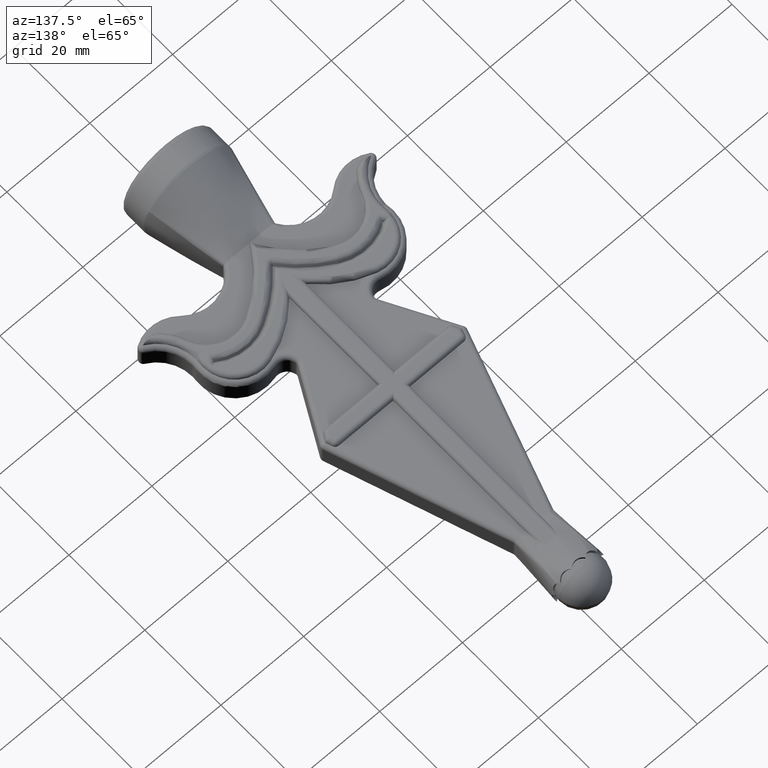
[diagram: clean part render]
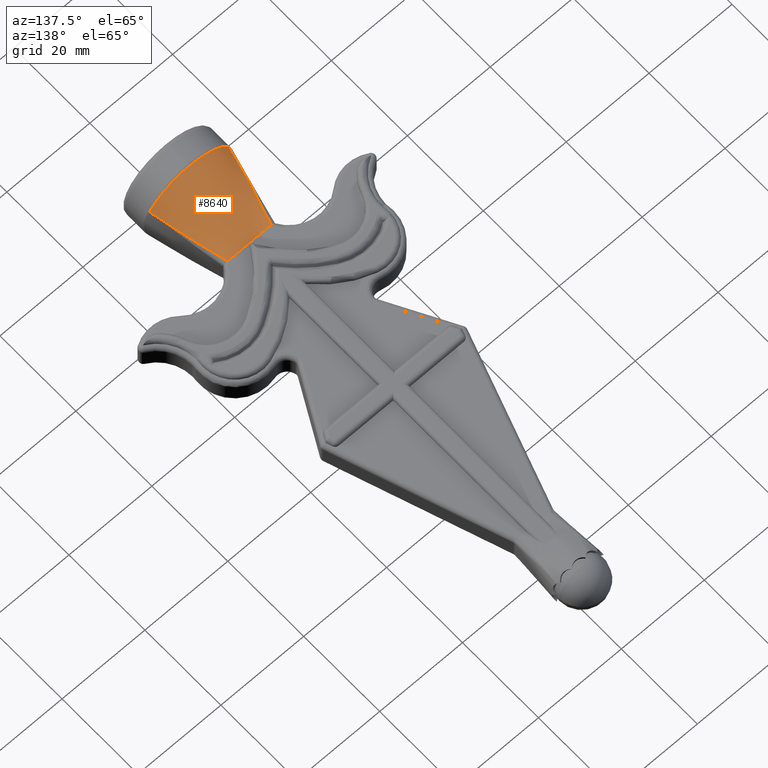
[diagram: same view with one face highlighted and labeled with its STEP entity id]
A machine part, auxiliary view. The second image highlights one B-rep face of the part: STEP entity #8640.
In plain terms, the highlighted face is a freeform B-spline surface patch.
Its self-contained STEP definition (entity closure, byte-faithful):
#73 = CARTESIAN_POINT ( 'NONE',  ( -5.266243742294511400, 22.00005610809793000, 3.249989336527393700 ) ) ;
#148 = CARTESIAN_POINT ( 'NONE',  ( 7.248639475262983500, 15.46262379196454400, 4.170989094167075500 ) ) ;
#187 = B_SPLINE_CURVE_WITH_KNOTS ( 'NONE', 3,
 ( #19378, #13108, #3645, #8485, #14683, #3577, #11507, #3868, #9909, #8415 ),
 .UNSPECIFIED., .F., .F.,
 ( 4, 2, 2, 2, 4 ),
 ( -6.000000000186783500E-008, 0.004136439241572319000, 0.008272938483144641100, 0.01240943772471696200, 0.01654593696628928500 ),
 .UNSPECIFIED. ) ;
#350 = CARTESIAN_POINT ( 'NONE',  ( 9.513144389087496900, 6.111428047479151400, 4.950568759943375400 ) ) ;
#603 = VERTEX_POINT ( 'NONE', #3733 ) ;
#1043 = CARTESIAN_POINT ( 'NONE',  ( -6.250000000000021300, 22.00000000000000000, 3.250000000000000000 ) ) ;
#1140 = EDGE_CURVE ( 'NONE', #16095, #10385, #14134, .T. ) ;
#1171 = CARTESIAN_POINT ( 'NONE',  ( 0.5208333333333339300, 21.99999999999999600, 3.249999999999999600 ) ) ;
#1305 = CARTESIAN_POINT ( 'NONE',  ( 9.537580613271902800, 6.000000000000000000, 4.959541918901377900 ) ) ;
#1525 = CARTESIAN_POINT ( 'NONE',  ( 5.165151513823994700, 21.99999999999998900, 3.250000000000004000 ) ) ;
#1809 = CARTESIAN_POINT ( 'NONE',  ( 0.9683731628859852900, 6.200012398156304400, 10.62309671897712500 ) ) ;
#1971 = VECTOR ( 'NONE', #14403, 1000.000000000000000 ) ;
#2006 = B_SPLINE_SURFACE_WITH_KNOTS ( 'NONE', 3, 1, ( 
 ( #10719, #1043, #13829 ),
 ( #11986, #15358, #16739 ),
 ( #20051, #4258, #12181 ),
 ( #15297, #9008, #15241 ),
 ( #5761, #8876, #4383 ),
 ( #7284, #12115, #5887 ),
 ( #2700, #16931, #16802 ),
 ( #5831, #15423, #16988 ),
 ( #8942, #7473, #7540 ),
 ( #12046, #1171, #19980 ),
 ( #2633, #13706, #9068 ),
 ( #2496, #16863, #13578 ),
 ( #4132, #10447, #18319 ),
 ( #2571, #18513, #20116 ),
 ( #10647, #7408, #19925 ),
 ( #18451, #13641, #18843 ),
 ( #4642, #20512, #18710 ),
 ( #1305, #18778, #4515 ) ),
 .UNSPECIFIED., .F., .F., .F.,
 ( 4, 2, 2, 2, 2, 2, 2, 2, 4 ),
 ( 2, 1, 2 ),
 ( 0.0000000000000000000, 0.1250000000000000300, 0.2500000000000000600, 0.3750000000000001100, 0.5000000000000001100, 0.6250000000000001100, 0.7500000000000002200, 0.8750000000000002200, 1.000000000000000000 ),
 ( 0.0000000000000000000, 1.000000000000000000, 1.010000000000000000 ),
 .UNSPECIFIED. ) ;
#2098 = CARTESIAN_POINT ( 'NONE',  ( 5.131154240925656800, 6.183385107899892900, 9.371855644858786900 ) ) ;
#2324 = DIRECTION ( 'NONE',  ( -1.000000000000000000, 0.0000000000000000000, 0.0000000000000000000 ) ) ;
#2362 = EDGE_CURVE ( 'NONE', #603, #5644, #19325, .T. ) ;
#2374 = CARTESIAN_POINT ( 'NONE',  ( -8.673617379884035500E-016, 22.00000000000000000, 3.250000000000000000 ) ) ;
#2496 = CARTESIAN_POINT ( 'NONE',  ( 4.205163981283923200, 6.000000000000000900, 9.950357934274812500 ) ) ;
#2571 = CARTESIAN_POINT ( 'NONE',  ( 6.803783035182218200, 6.000000000000002700, 8.382303401670061000 ) ) ;
#2633 = CARTESIAN_POINT ( 'NONE',  ( 2.174410978558045200, 6.000000000000001800, 10.58134982060416000 ) ) ;
#2700 = CARTESIAN_POINT ( 'NONE',  ( -4.205163981283924100, 6.000000000000001800, 9.950357934274814300 ) ) ;
#2868 = CARTESIAN_POINT ( 'NONE',  ( 5.116784102251076900, 22.00000000000000000, 3.250000000000000000 ) ) ;
#2939 = ORIENTED_EDGE ( 'NONE', *, *, #9196, .T. ) ;
#3134 = CARTESIAN_POINT ( 'NONE',  ( -7.481673178047332200, 6.157778641327777100, 7.658597178328012200 ) ) ;
#3205 = CARTESIAN_POINT ( 'NONE',  ( -6.361610438375008900, 6.172686067414304900, 8.597291167467121300 ) ) ;
#3226 = CARTESIAN_POINT ( 'NONE',  ( 5.266262131739829900, 22.00000000000000000, 3.250000000000000000 ) ) ;
#3577 = CARTESIAN_POINT ( 'NONE',  ( -7.951279007523856600, 12.80646236415938300, 4.415913353782698900 ) ) ;
#3634 = CARTESIAN_POINT ( 'NONE',  ( 6.382521586197591500, 6.174196974607332000, 8.622491702567524300 ) ) ;
#3645 = CARTESIAN_POINT ( 'NONE',  ( -6.096878405706267000, 19.40804206318112400, 3.695658979978787800 ) ) ;
#3733 = CARTESIAN_POINT ( 'NONE',  ( -5.255805630164780400, 22.03189181989564100, 3.243929333446773400 ) ) ;
#3825 = CARTESIAN_POINT ( 'NONE',  ( 5.259286017763429300, 22.02128082266397900, 3.245952343499007000 ) ) ;
#3868 = CARTESIAN_POINT ( 'NONE',  ( -8.915880124540283400, 8.796052428464866700, 4.737448862816463300 ) ) ;
#4132 = CARTESIAN_POINT ( 'NONE',  ( 5.147963392747053400, 6.000000000000000900, 9.489623112348505500 ) ) ;
#4258 = CARTESIAN_POINT ( 'NONE',  ( -5.208333333333351700, 22.00000000000000400, 3.250000000000000900 ) ) ;
#4383 = CARTESIAN_POINT ( 'NONE',  ( -3.614253836314857100, 22.16000000000000000, 3.198676965983299400 ) ) ;
#4515 = CARTESIAN_POINT ( 'NONE',  ( 6.217124193867301900, 22.16000000000000000, 3.232904580810986000 ) ) ;
#4642 = CARTESIAN_POINT ( 'NONE',  ( 9.170898203532186000, 5.999999999999998200, 5.664700399170058600 ) ) ;
#4674 = CARTESIAN_POINT ( 'NONE',  ( -9.283791435017770200, 6.119400560037843400, 5.382983090056068700 ) ) ;
#4857 = CARTESIAN_POINT ( 'NONE',  ( -5.165336576323706000, 22.00000000000000000, 3.250000000000000000 ) ) ;
#4934 = CARTESIAN_POINT ( 'NONE',  ( -4.702737057444714700, 6.186003479268984000, 9.590600137749072800 ) ) ;
#5005 = CARTESIAN_POINT ( 'NONE',  ( -5.266262131739647900, 22.00000000000000000, 3.250000000000000000 ) ) ;
#5094 = CARTESIAN_POINT ( 'NONE',  ( 8.282574215453468700, 11.47193090359445700, 4.524109014534240600 ) ) ;
#5215 = CARTESIAN_POINT ( 'NONE',  ( 8.458976083981527300, 6.140463448206527500, 6.583607278753451200 ) ) ;
#5231 = EDGE_CURVE ( 'NONE', #9383, #8443, #17036, .T. ) ;
#5260 = CARTESIAN_POINT ( 'NONE',  ( 5.266249872112724400, 22.00003740540157800, 3.249992891027562600 ) ) ;
#5644 = VERTEX_POINT ( 'NONE', #9685 ) ;
#5761 = CARTESIAN_POINT ( 'NONE',  ( -6.803783035182217300, 6.000000000000000900, 8.382303401670055700 ) ) ;
#5831 = CARTESIAN_POINT ( 'NONE',  ( -2.174410978558047400, 6.000000000000001800, 10.58134982060415700 ) ) ;
#5887 = CARTESIAN_POINT ( 'NONE',  ( -2.578728699405871300, 22.16000000000000000, 3.187603768876515100 ) ) ;
#6054 = CARTESIAN_POINT ( 'NONE',  ( -5.262765388684179900, 22.01066891733248100, 3.247972342211044700 ) ) ;
#6241 = LINE ( 'NONE', #14902, #18364 ) ;
#6308 = CARTESIAN_POINT ( 'NONE',  ( -9.513144389087500500, 6.111428047479153100, 4.950568759943366500 ) ) ;
#6506 = CARTESIAN_POINT ( 'NONE',  ( 8.146665141747838800, 6.147069725105472700, 6.960022246903661400 ) ) ;
#6570 = CARTESIAN_POINT ( 'NONE',  ( 1.936787860577058300, 6.197936591016179400, 10.49176261626836900 ) ) ;
#6646 = CARTESIAN_POINT ( 'NONE',  ( -3.347104929027952200, 6.195181620856683200, 10.13557363680678600 ) ) ;
#6721 = CARTESIAN_POINT ( 'NONE',  ( 4.693290191402661900, 6.186068141887338000, 9.595123525258197000 ) ) ;
#6772 = CARTESIAN_POINT ( 'NONE',  ( 5.266243742294459000, 22.00005610809807500, 3.249989336527363100 ) ) ;
#7274 = EDGE_CURVE ( 'NONE', #5644, #9383, #187, .T. ) ;
#7284 = CARTESIAN_POINT ( 'NONE',  ( -5.147963392747056100, 6.000000000000003600, 9.489623112348507300 ) ) ;
#7309 = EDGE_CURVE ( 'NONE', #16648, #10582, #6241, .T. ) ;
#7408 = CARTESIAN_POINT ( 'NONE',  ( 4.166666666666682100, 22.00000000000000000, 3.250000000000000000 ) ) ;
#7473 = CARTESIAN_POINT ( 'NONE',  ( -0.5208333333333360300, 21.99999999999999600, 3.250000000000000000 ) ) ;
#7540 = CARTESIAN_POINT ( 'NONE',  ( -0.5151640959815015900, 22.15999999999999700, 3.174999999999999800 ) ) ;
#7705 = CARTESIAN_POINT ( 'NONE',  ( 5.211612322998322000, 22.01320961323489900, 3.247356562367169200 ) ) ;
#7823 = CARTESIAN_POINT ( 'NONE',  ( -5.255805630164780400, 22.03189181989564100, 3.243929333446773400 ) ) ;
#8058 = CARTESIAN_POINT ( 'NONE',  ( 9.513144389087496900, 6.111428047479151400, 4.950568759943375400 ) ) ;
#8415 = CARTESIAN_POINT ( 'NONE',  ( -9.513144389087500500, 6.111428047479153100, 4.950568759943366500 ) ) ;
#8442 = CARTESIAN_POINT ( 'NONE',  ( 5.255805630164780400, 22.03189181989563000, 3.243929333446775600 ) ) ;
#8443 = VERTEX_POINT ( 'NONE', #8459 ) ;
#8459 = CARTESIAN_POINT ( 'NONE',  ( 9.513144389087496900, 6.111428047479151400, 4.950568759943375400 ) ) ;
#8485 = CARTESIAN_POINT ( 'NONE',  ( -6.877286066557320300, 16.78365337930461700, 4.033645649997770200 ) ) ;
#8640 = ADVANCED_FACE ( 'NONE', ( #12654 ), #2006, .T. ) ;
#8876 = CARTESIAN_POINT ( 'NONE',  ( -3.645833333333345900, 22.00000000000000000, 3.250000000000000400 ) ) ;
#8942 = CARTESIAN_POINT ( 'NONE',  ( -1.087757068516771700, 6.000000000000001800, 10.75000000000000000 ) ) ;
#9008 = CARTESIAN_POINT ( 'NONE',  ( -4.166666666666681200, 22.00000000000000400, 3.250000000000000900 ) ) ;
#9068 = CARTESIAN_POINT ( 'NONE',  ( 1.030339223547755800, 22.15999999999999700, 3.176686501793957600 ) ) ;
#9196 = EDGE_CURVE ( 'NONE', #8443, #16095, #17607, .T. ) ;
#9383 = VERTEX_POINT ( 'NONE', #10276 ) ;
#9555 = CARTESIAN_POINT ( 'NONE',  ( -8.455768689912059000, 6.140533841806497900, 6.587655244161040500 ) ) ;
#9558 = CARTESIAN_POINT ( 'NONE',  ( -5.259286017763444400, 22.02128082266395400, 3.245952343499118000 ) ) ;
#9685 = CARTESIAN_POINT ( 'NONE',  ( -5.266262131739647900, 22.00000000000000000, 3.250000000000000000 ) ) ;
#9696 = CARTESIAN_POINT ( 'NONE',  ( -5.266249872112776800, 22.00003740540143200, 3.249992891027592800 ) ) ;
#9826 = CARTESIAN_POINT ( 'NONE',  ( 0.4814341597001783300, 6.201709140392495100, 10.65581725661174100 ) ) ;
#9898 = CARTESIAN_POINT ( 'NONE',  ( -3.811521954067858000, 6.192022241144301600, 9.972679047924605900 ) ) ;
#9909 = CARTESIAN_POINT ( 'NONE',  ( -9.218395268873289100, 7.454435289879546300, 4.842485828958579000 ) ) ;
#9945 = CARTESIAN_POINT ( 'NONE',  ( 5.262765388684144300, 22.01066891733257300, 3.247972342211023800 ) ) ;
#10276 = CARTESIAN_POINT ( 'NONE',  ( -9.513144389087500500, 6.111428047479153100, 4.950568759943366500 ) ) ;
#10385 = VERTEX_POINT ( 'NONE', #19718 ) ;
#10447 = CARTESIAN_POINT ( 'NONE',  ( 2.604166666666675800, 22.00000000000000000, 3.250000000000000000 ) ) ;
#10582 = VERTEX_POINT ( 'NONE', #20058 ) ;
#10647 = CARTESIAN_POINT ( 'NONE',  ( 7.517100418592955100, 6.000000000000001800, 7.737404311541534500 ) ) ;
#10719 = CARTESIAN_POINT ( 'NONE',  ( -9.537580613271902800, 6.000000000000000000, 4.959541918901375200 ) ) ;
#10853 = ORIENTED_EDGE ( 'NONE', *, *, #5231, .T. ) ;
#11148 = CARTESIAN_POINT ( 'NONE',  ( -5.266256001924723800, 22.00001870270112300, 3.249996445518652100 ) ) ;
#11163 = CARTESIAN_POINT ( 'NONE',  ( 7.951319088180556900, 12.80630543106498500, 4.415926780710862900 ) ) ;
#11237 = CARTESIAN_POINT ( 'NONE',  ( 6.096892162359481800, 19.40799817594171700, 3.695665729059159700 ) ) ;
#11318 = ORIENTED_EDGE ( 'NONE', *, *, #16038, .T. ) ;
#11496 = CARTESIAN_POINT ( 'NONE',  ( -1.938339075432371900, 6.197936673957306300, 10.49122085003018300 ) ) ;
#11507 = CARTESIAN_POINT ( 'NONE',  ( -8.282539973065702600, 11.47207258598119300, 4.524097600794403800 ) ) ;
#11627 = CARTESIAN_POINT ( 'NONE',  ( 5.116784102251076900, 22.00000000000000000, 3.250000000000000000 ) ) ;
#11759 = CARTESIAN_POINT ( 'NONE',  ( 5.266262131739829900, 22.00000000000000000, 3.250000000000000000 ) ) ;
#11986 = CARTESIAN_POINT ( 'NONE',  ( -9.170898203532187800, 6.000000000000000900, 5.664700399170058600 ) ) ;
#12046 = CARTESIAN_POINT ( 'NONE',  ( 1.087757068516770100, 6.000000000000000900, 10.75000000000000200 ) ) ;
#12115 = CARTESIAN_POINT ( 'NONE',  ( -2.604166666666675400, 22.00000000000000000, 3.250000000000000400 ) ) ;
#12181 = CARTESIAN_POINT ( 'NONE',  ( -5.173415344161258000, 22.16000000000000400, 3.218717617631091000 ) ) ;
#12478 = CARTESIAN_POINT ( 'NONE',  ( -5.211512164960383100, 22.01316727258954100, 3.247364329708864800 ) ) ;
#12490 = ORIENTED_EDGE ( 'NONE', *, *, #7274, .T. ) ;
#12614 = CARTESIAN_POINT ( 'NONE',  ( -9.023977440563603700, 6.126668204768242800, 5.800154154896286900 ) ) ;
#12654 = FACE_OUTER_BOUND ( 'NONE', #19201, .T. ) ;
#12682 = CARTESIAN_POINT ( 'NONE',  ( -7.124920048205471100, 6.162723247070084100, 7.986540772512828600 ) ) ;
#12701 = CARTESIAN_POINT ( 'NONE',  ( 5.688974629295335800, 20.71025893111114200, 3.495117565940804900 ) ) ;
#12882 = CARTESIAN_POINT ( 'NONE',  ( 2.415374666999853900, 6.197612161087731100, 10.39321786520198500 ) ) ;
#13108 = CARTESIAN_POINT ( 'NONE',  ( -5.688861288427099300, 20.71060471238525100, 3.495051849599446500 ) ) ;
#13166 = CARTESIAN_POINT ( 'NONE',  ( 3.347357782498423100, 6.195177162965921800, 10.13540507335356000 ) ) ;
#13578 = CARTESIAN_POINT ( 'NONE',  ( 2.062115026853835100, 22.16000000000000000, 3.182996420657251400 ) ) ;
#13641 = CARTESIAN_POINT ( 'NONE',  ( 5.208333333333351700, 22.00000000000000000, 3.250000000000000000 ) ) ;
#13706 = CARTESIAN_POINT ( 'NONE',  ( 1.041666666666669400, 21.99999999999999600, 3.249999999999999600 ) ) ;
#13829 = CARTESIAN_POINT ( 'NONE',  ( -6.217124193867302800, 22.16000000000000000, 3.232904580810986000 ) ) ;
#14134 = B_SPLINE_CURVE_WITH_KNOTS ( 'NONE', 3,
 ( #11759, #19552, #5260, #6772, #9945, #3825, #8442 ),
 .UNSPECIFIED., .F., .F.,
 ( 4, 3, 4 ),
 ( -6.000000000266466800E-008, 0.0000000000000000000, 3.404688484759801000E-005 ),
 .UNSPECIFIED. ) ;
#14233 = EDGE_CURVE ( 'NONE', #10582, #603, #17228, .T. ) ;
#14249 = CARTESIAN_POINT ( 'NONE',  ( -5.961635650849368400, 6.177288954124195500, 8.874600895184475000 ) ) ;
#14264 = CARTESIAN_POINT ( 'NONE',  ( 9.218397353852589400, 7.454425789778571100, 4.842486593516357900 ) ) ;
#14403 = DIRECTION ( 'NONE',  ( -1.000000000000000000, 0.0000000000000000000, 0.0000000000000000000 ) ) ;
#14518 = CARTESIAN_POINT ( 'NONE',  ( -2.411537429368239700, 6.197618372753261400, 10.39418030411366100 ) ) ;
#14590 = CARTESIAN_POINT ( 'NONE',  ( 9.283793652445933000, 6.119400482958070600, 5.382978909391751700 ) ) ;
#14671 = CARTESIAN_POINT ( 'NONE',  ( -0.4974026386620098400, 6.201665711265326800, 10.65509472169639500 ) ) ;
#14683 = CARTESIAN_POINT ( 'NONE',  ( -7.248608603758195400, 15.46273507662039000, 4.170977788775425100 ) ) ;
#14750 = CARTESIAN_POINT ( 'NONE',  ( 5.266262131739829900, 22.00000000000000000, 3.250000000000000000 ) ) ;
#14805 = B_SPLINE_CURVE_WITH_KNOTS ( 'NONE', 3,
 ( #15573, #7705, #1525, #2868 ),
 .UNSPECIFIED., .F., .F.,
 ( 4, 4 ),
 ( 0.0000000000000000000, 0.0001429036859154194600 ),
 .UNSPECIFIED. ) ;
#14902 = CARTESIAN_POINT ( 'NONE',  ( 16.50000000000000000, 22.00000000000000000, 3.250000000000000000 ) ) ;
#15241 = CARTESIAN_POINT ( 'NONE',  ( -4.133162329147418200, 22.16000000000000400, 3.205125956884585600 ) ) ;
#15297 = CARTESIAN_POINT ( 'NONE',  ( -7.517100418592956900, 6.000000000000000000, 7.737404311541531900 ) ) ;
#15301 = ORIENTED_EDGE ( 'NONE', *, *, #1140, .T. ) ;
#15358 = CARTESIAN_POINT ( 'NONE',  ( -5.729166666666687400, 22.00000000000000400, 3.250000000000000400 ) ) ;
#15423 = CARTESIAN_POINT ( 'NONE',  ( -1.041666666666670500, 22.00000000000000000, 3.250000000000000400 ) ) ;
#15449 = ORIENTED_EDGE ( 'NONE', *, *, #7309, .T. ) ;
#15573 = CARTESIAN_POINT ( 'NONE',  ( 5.255805630164780400, 22.03189181989563000, 3.243929333446775600 ) ) ;
#15790 = CARTESIAN_POINT ( 'NONE',  ( 16.50000000000000000, 22.00000000000000000, 3.250000000000000000 ) ) ;
#15974 = CARTESIAN_POINT ( 'NONE',  ( 3.802964036328204700, 6.192079155317650900, 9.975864941924291100 ) ) ;
#16038 = EDGE_CURVE ( 'NONE', #16596, #16648, #19279, .T. ) ;
#16095 = VERTEX_POINT ( 'NONE', #14750 ) ;
#16137 = CARTESIAN_POINT ( 'NONE',  ( 6.877311715054188900, 16.78356475307869600, 4.033655966849661200 ) ) ;
#16289 = ORIENTED_EDGE ( 'NONE', *, *, #14233, .T. ) ;
#16306 = ORIENTED_EDGE ( 'NONE', *, *, #20174, .T. ) ;
#16528 = ORIENTED_EDGE ( 'NONE', *, *, #2362, .T. ) ;
#16596 = VERTEX_POINT ( 'NONE', #11627 ) ;
#16648 = VERTEX_POINT ( 'NONE', #2374 ) ;
#16739 = CARTESIAN_POINT ( 'NONE',  ( -5.694749351298032300, 22.16000000000000400, 3.225852996008299600 ) ) ;
#16802 = CARTESIAN_POINT ( 'NONE',  ( -2.062115026853834600, 22.16000000000000000, 3.182996420657252300 ) ) ;
#16863 = CARTESIAN_POINT ( 'NONE',  ( 2.083333333333340600, 22.00000000000000000, 3.249999999999999600 ) ) ;
#16931 = CARTESIAN_POINT ( 'NONE',  ( -2.083333333333340100, 22.00000000000000000, 3.250000000000000400 ) ) ;
#16988 = CARTESIAN_POINT ( 'NONE',  ( -1.030339223547756900, 22.16000000000000000, 3.176686501793958500 ) ) ;
#17036 = B_SPLINE_CURVE_WITH_KNOTS ( 'NONE', 3,
 ( #6308, #4674, #12614, #9555, #17291, #3134, #12682, #3205, #14249, #17699, #4934, #9898, #6646, #14518, #11496, #17845, #14671, #9826, #1809, #6570, #12882, #13166, #15974, #6721, #2098, #3634, #19290, #6506, #5215, #17772, #14590, #350 ),
 .UNSPECIFIED., .F., .F.,
 ( 4, 2, 2, 2, 2, 2, 2, 2, 2, 2, 2, 2, 2, 2, 2, 4 ),
 ( 0.0000000000000000000, 0.001467442643020633500, 0.002934885286041267000, 0.004402327929061898700, 0.005869770572082530500, 0.007337213215103162300, 0.008804655858123794000, 0.01027209850114442700, 0.01173954114416505800, 0.01320698378718569200, 0.01467442643020632300, 0.01614186907322695200, 0.01760931171624758500, 0.02054419700228883900, 0.02201163964530946500, 0.02347908228833009400 ),
 .UNSPECIFIED. ) ;
#17228 = B_SPLINE_CURVE_WITH_KNOTS ( 'NONE', 3,
 ( #20535, #4857, #12478, #7823 ),
 .UNSPECIFIED., .F., .F.,
 ( 4, 4 ),
 ( 1.734723475976807100E-018, 0.0001428019086989254200 ),
 .UNSPECIFIED. ) ;
#17291 = CARTESIAN_POINT ( 'NONE',  ( -8.147102053479359900, 6.147052557710599000, 6.959152448448396200 ) ) ;
#17607 = B_SPLINE_CURVE_WITH_KNOTS ( 'NONE', 3,
 ( #8058, #14264, #19100, #5094, #11163, #148, #16137, #11237, #12701, #3226 ),
 .UNSPECIFIED., .F., .F.,
 ( 4, 2, 2, 2, 4 ),
 ( 0.0000000000000000000, 0.004137608550057861300, 0.008275217100115722600, 0.01241282565017358400, 0.01655043420023144500 ),
 .UNSPECIFIED. ) ;
#17699 = CARTESIAN_POINT ( 'NONE',  ( -5.132696728382929200, 6.183372142723871300, 9.370864266563522400 ) ) ;
#17772 = CARTESIAN_POINT ( 'NONE',  ( 9.026787225358075900, 6.126591681097147000, 5.795858463148355200 ) ) ;
#17845 = CARTESIAN_POINT ( 'NONE',  ( -0.9812710416605143800, 6.199981394434519000, 10.62167396800454900 ) ) ;
#18319 = CARTESIAN_POINT ( 'NONE',  ( 2.578728699405872200, 22.16000000000000000, 3.187603768876514600 ) ) ;
#18364 = VECTOR ( 'NONE', #2324, 1000.000000000000000 ) ;
#18451 = CARTESIAN_POINT ( 'NONE',  ( 8.700132250542729700, 5.999999999999999100, 6.378238236890982000 ) ) ;
#18513 = CARTESIAN_POINT ( 'NONE',  ( 3.645833333333346800, 22.00000000000000000, 3.250000000000000000 ) ) ;
#18710 = CARTESIAN_POINT ( 'NONE',  ( 5.694749351298031400, 22.16000000000000000, 3.225852996008299100 ) ) ;
#18778 = CARTESIAN_POINT ( 'NONE',  ( 6.250000000000020400, 22.00000000000000000, 3.250000000000000000 ) ) ;
#18843 = CARTESIAN_POINT ( 'NONE',  ( 5.173415344161257100, 22.16000000000000000, 3.218717617631090100 ) ) ;
#19100 = CARTESIAN_POINT ( 'NONE',  ( 8.915890427724241000, 8.796005894480231300, 4.737452455010579700 ) ) ;
#19153 = CARTESIAN_POINT ( 'NONE',  ( -5.255805630164780400, 22.03189181989564100, 3.243929333446773400 ) ) ;
#19201 = EDGE_LOOP ( 'NONE', ( #16289, #16528, #12490, #10853, #2939, #15301, #16306, #11318, #15449 ) ) ;
#19279 = LINE ( 'NONE', #15790, #1971 ) ;
#19290 = CARTESIAN_POINT ( 'NONE',  ( 7.136883261640871700, 6.163315882403705500, 8.020183249187466500 ) ) ;
#19325 = B_SPLINE_CURVE_WITH_KNOTS ( 'NONE', 3,
 ( #19153, #9558, #6054, #73, #9696, #11148, #5005 ),
 .UNSPECIFIED., .F., .F.,
 ( 4, 3, 4 ),
 ( 0.0000000000000000000, 3.404688484776472700E-005, 3.410688484776379400E-005 ),
 .UNSPECIFIED. ) ;
#19378 = CARTESIAN_POINT ( 'NONE',  ( -5.266262131739647900, 22.00000000000000000, 3.250000000000000000 ) ) ;
#19552 = CARTESIAN_POINT ( 'NONE',  ( 5.266256001924521300, 22.00001870270121900, 3.249996445518641400 ) ) ;
#19718 = CARTESIAN_POINT ( 'NONE',  ( 5.255805630164780400, 22.03189181989563000, 3.243929333446775600 ) ) ;
#19925 = CARTESIAN_POINT ( 'NONE',  ( 4.133162329147419100, 22.16000000000000000, 3.205125956884584700 ) ) ;
#19980 = CARTESIAN_POINT ( 'NONE',  ( 0.5151640959814995900, 22.15999999999999700, 3.174999999999999400 ) ) ;
#20051 = CARTESIAN_POINT ( 'NONE',  ( -8.700132250542731400, 6.000000000000000000, 6.378238236890979400 ) ) ;
#20058 = CARTESIAN_POINT ( 'NONE',  ( -5.116784102251075200, 22.00000000000000000, 3.250000000000000000 ) ) ;
#20116 = CARTESIAN_POINT ( 'NONE',  ( 3.614253836314858000, 22.16000000000000000, 3.198676965983299000 ) ) ;
#20174 = EDGE_CURVE ( 'NONE', #10385, #16596, #14805, .T. ) ;
#20512 = CARTESIAN_POINT ( 'NONE',  ( 5.729166666666686500, 22.00000000000000000, 3.250000000000000000 ) ) ;
#20535 = CARTESIAN_POINT ( 'NONE',  ( -5.116784102251075200, 22.00000000000000000, 3.250000000000000000 ) ) ;